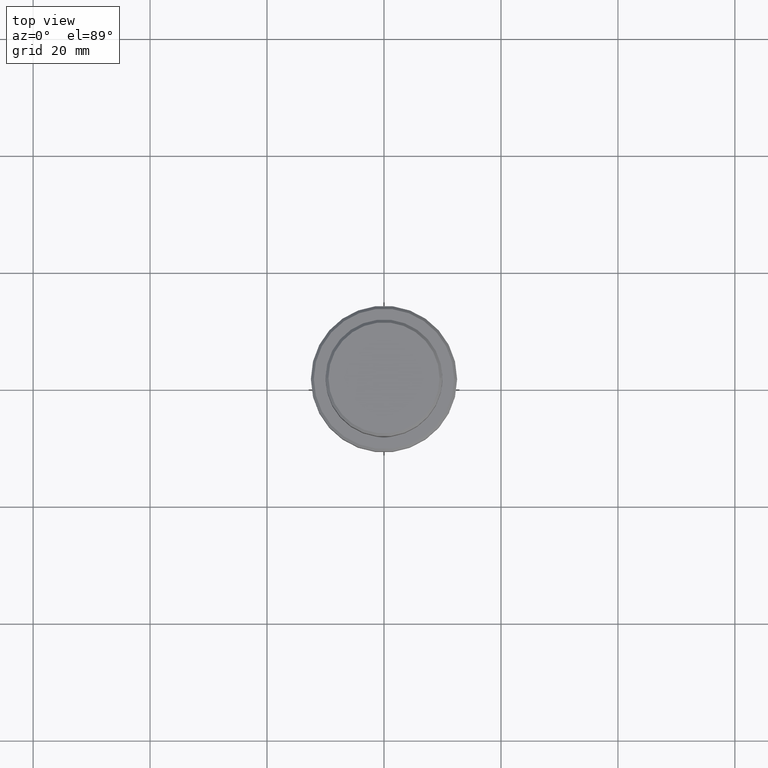
[diagram: clean part render]
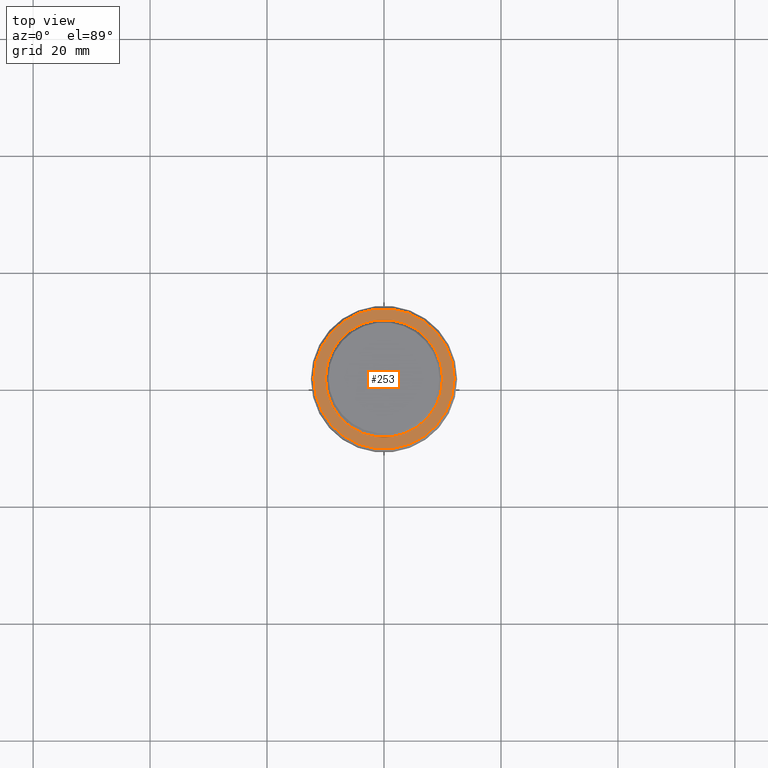
[diagram: same view with one face highlighted and labeled with its STEP entity id]
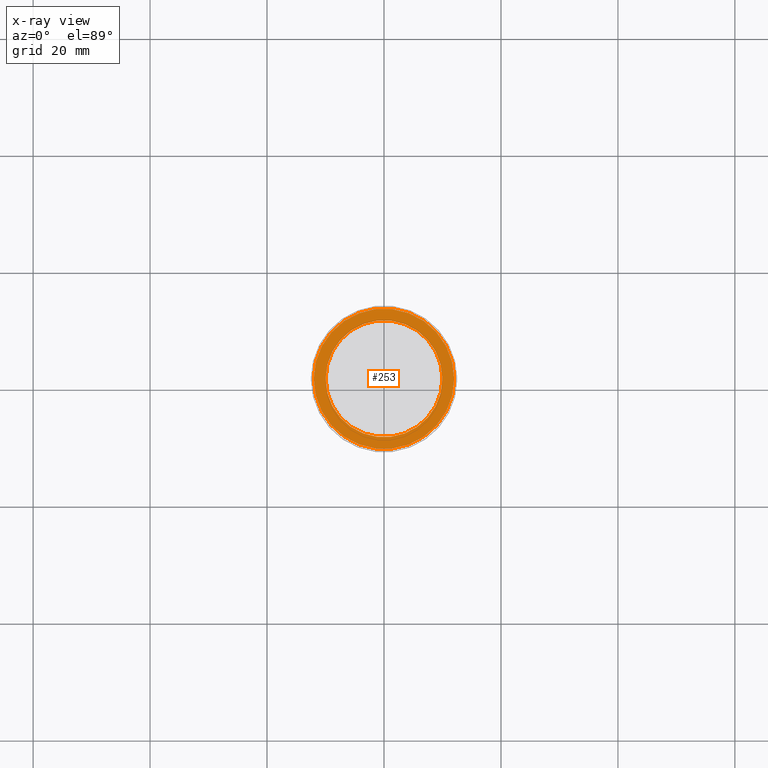
[diagram: x-ray of the same camera — body ghosted, the highlighted face saturated]
A machine part, top view. The second image highlights one B-rep face of the part: STEP entity #253.
The next image is the same camera in x-ray: the body ghosted, the highlighted face saturated — about 0% of this face is hidden behind the body in this view.
In plain terms, the highlighted planar face has unit normal (0, -0, 1).
Its self-contained STEP definition (entity closure, byte-faithful):
#30 = CARTESIAN_POINT ( 'NONE',  ( 0.000000000000000000, 0.000000000000000000, -9.000000000000000000 ) ) ;
#90 = ORIENTED_EDGE ( 'NONE', *, *, #765, .T. ) ;
#116 = CARTESIAN_POINT ( 'NONE',  ( 9.999999999999992895, 0.000000000000000000, -9.000000000000000000 ) ) ;
#186 = DIRECTION ( 'NONE',  ( 1.000000000000000000, 0.000000000000000000, 0.000000000000000000 ) ) ;
#253 = ADVANCED_FACE ( 'NONE', ( #1398, #753 ), #1305, .T. ) ;
#290 = CIRCLE ( 'NONE', #336, 9.999999999999992895 ) ;
#336 = AXIS2_PLACEMENT_3D ( 'NONE', #841, #1179, #750 ) ;
#350 = CARTESIAN_POINT ( 'NONE',  ( 0.000000000000000000, 9.499999999999992895, -9.000000000000000000 ) ) ;
#382 = AXIS2_PLACEMENT_3D ( 'NONE', #1242, #485, #1033 ) ;
#419 = DIRECTION ( 'NONE',  ( 0.000000000000000000, -0.000000000000000000, 1.000000000000000000 ) ) ;
#481 = ORIENTED_EDGE ( 'NONE', *, *, #1268, .T. ) ;
#485 = DIRECTION ( 'NONE',  ( -0.000000000000000000, -0.000000000000000000, 1.000000000000000000 ) ) ;
#586 = EDGE_CURVE ( 'NONE', #1311, #1149, #1384, .T. ) ;
#643 = DIRECTION ( 'NONE',  ( 1.000000000000000000, 0.000000000000000000, 0.000000000000000000 ) ) ;
#698 = AXIS2_PLACEMENT_3D ( 'NONE', #736, #1180, #186 ) ;
#727 = VERTEX_POINT ( 'NONE', #1324 ) ;
#736 = CARTESIAN_POINT ( 'NONE',  ( 0.000000000000000000, 0.000000000000000000, -9.000000000000000000 ) ) ;
#750 = DIRECTION ( 'NONE',  ( 1.000000000000000000, 0.000000000000000000, 0.000000000000000000 ) ) ;
#753 = FACE_BOUND ( 'NONE', #869, .T. ) ;
#765 = EDGE_CURVE ( 'NONE', #1149, #1311, #1110, .T. ) ;
#841 = CARTESIAN_POINT ( 'NONE',  ( 0.000000000000000000, 0.000000000000000000, -9.000000000000000000 ) ) ;
#869 = EDGE_LOOP ( 'NONE', ( #481, #1334 ) ) ;
#932 = CARTESIAN_POINT ( 'NONE',  ( -11.99999999999998224, 0.000000000000000000, -9.000000000000000000 ) ) ;
#1033 = DIRECTION ( 'NONE',  ( 1.000000000000000000, 0.000000000000000000, 0.000000000000000000 ) ) ;
#1034 = DIRECTION ( 'NONE',  ( 1.000000000000000000, 0.000000000000000000, 0.000000000000000000 ) ) ;
#1040 = DIRECTION ( 'NONE',  ( 0.000000000000000000, 0.000000000000000000, -1.000000000000000000 ) ) ;
#1061 = AXIS2_PLACEMENT_3D ( 'NONE', #350, #419, #643 ) ;
#1075 = EDGE_CURVE ( 'NONE', #727, #1389, #1366, .T. ) ;
#1110 = CIRCLE ( 'NONE', #382, 11.99999999999998224 ) ;
#1149 = VERTEX_POINT ( 'NONE', #932 ) ;
#1179 = DIRECTION ( 'NONE',  ( 0.000000000000000000, 0.000000000000000000, -1.000000000000000000 ) ) ;
#1180 = DIRECTION ( 'NONE',  ( -0.000000000000000000, -0.000000000000000000, 1.000000000000000000 ) ) ;
#1190 = AXIS2_PLACEMENT_3D ( 'NONE', #30, #1040, #1034 ) ;
#1193 = CARTESIAN_POINT ( 'NONE',  ( 11.99999999999998224, 1.500192328955506748E-15, -9.000000000000000000 ) ) ;
#1214 = EDGE_LOOP ( 'NONE', ( #90, #1238 ) ) ;
#1238 = ORIENTED_EDGE ( 'NONE', *, *, #586, .T. ) ;
#1242 = CARTESIAN_POINT ( 'NONE',  ( 0.000000000000000000, 0.000000000000000000, -9.000000000000000000 ) ) ;
#1268 = EDGE_CURVE ( 'NONE', #1389, #727, #290, .T. ) ;
#1305 = PLANE ( 'NONE',  #1061 ) ;
#1311 = VERTEX_POINT ( 'NONE', #1193 ) ;
#1324 = CARTESIAN_POINT ( 'NONE',  ( -9.999999999999992895, 1.224646799147352468E-15, -9.000000000000000000 ) ) ;
#1334 = ORIENTED_EDGE ( 'NONE', *, *, #1075, .T. ) ;
#1366 = CIRCLE ( 'NONE', #1190, 9.999999999999992895 ) ;
#1384 = CIRCLE ( 'NONE', #698, 11.99999999999998224 ) ;
#1389 = VERTEX_POINT ( 'NONE', #116 ) ;
#1398 = FACE_OUTER_BOUND ( 'NONE', #1214, .T. ) ;